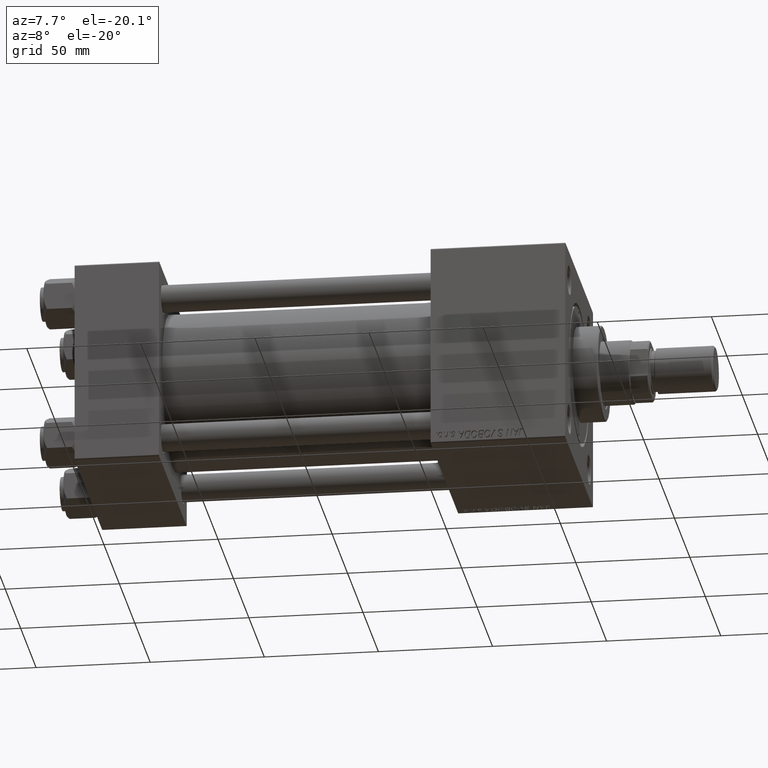
[diagram: clean part render]
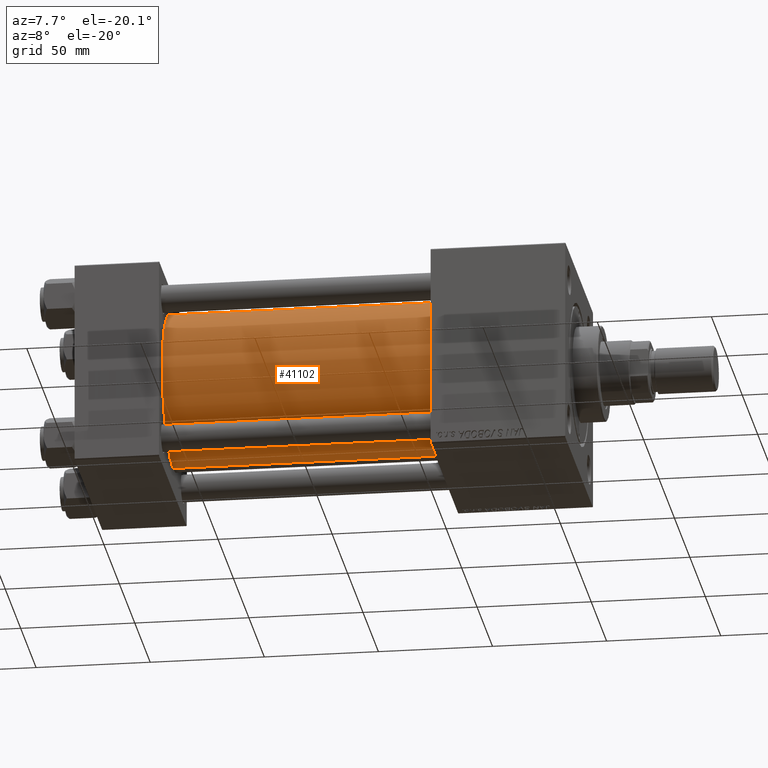
[diagram: same view with one face highlighted and labeled with its STEP entity id]
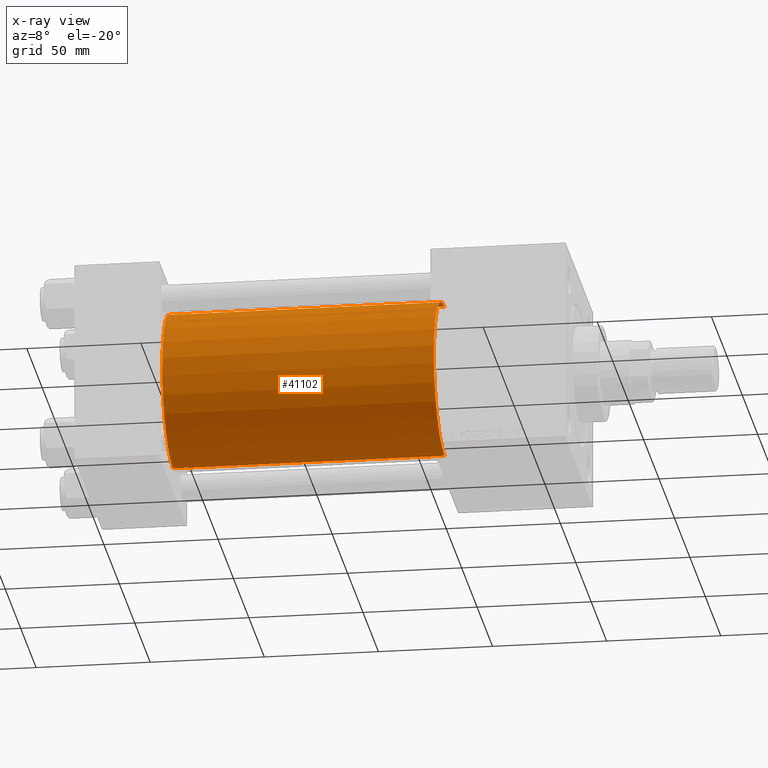
[diagram: x-ray of the same camera — body ghosted, the highlighted face saturated]
A machine part, auxiliary view. The second image highlights one B-rep face of the part: STEP entity #41102.
The next image is the same camera in x-ray: the body ghosted, the highlighted face saturated — about 0% of this face is hidden behind the body in this view.
In plain terms, the highlighted cylindrical surface (partial cylindrical patch) has radius 34.5 mm, axis along (-1, -0, -0).
Its self-contained STEP definition (entity closure, byte-faithful):
#69 = ORIENTED_EDGE ( 'NONE', *, *, #21824, .F. ) ;
#193 = DIRECTION ( 'NONE',  ( 1.000000000000000000, 0.000000000000000000, 0.000000000000000000 ) ) ;
#2492 = DIRECTION ( 'NONE',  ( 1.000000000000000000, -0.000000000000000000, 0.000000000000000000 ) ) ;
#3146 = CARTESIAN_POINT ( 'NONE',  ( 156.0000000000000000, -2.602085213965210642E-15, 0.000000000000000000 ) ) ;
#4320 = CIRCLE ( 'NONE', #44531, 34.50000000000000000 ) ;
#4826 = CARTESIAN_POINT ( 'NONE',  ( 37.00000000000000711, -2.602085213965210642E-15, 0.000000000000000000 ) ) ;
#5349 = LINE ( 'NONE', #28980, #15312 ) ;
#6786 = VERTEX_POINT ( 'NONE', #11442 ) ;
#7897 = EDGE_CURVE ( 'NONE', #27802, #31330, #27144, .T. ) ;
#10589 = VERTEX_POINT ( 'NONE', #42071 ) ;
#10615 = DIRECTION ( 'NONE',  ( 0.000000000000000000, 0.000000000000000000, 1.000000000000000000 ) ) ;
#11442 = CARTESIAN_POINT ( 'NONE',  ( 37.00000000000000711, 1.622946243093158675E-15, -34.50000000000000000 ) ) ;
#13494 = EDGE_CURVE ( 'NONE', #10589, #6786, #4320, .T. ) ;
#15075 = DIRECTION ( 'NONE',  ( 0.000000000000000000, 0.000000000000000000, 1.000000000000000000 ) ) ;
#15312 = VECTOR ( 'NONE', #24597, 1000.000000000000000 ) ;
#18578 = FACE_OUTER_BOUND ( 'NONE', #27796, .T. ) ;
#21625 = AXIS2_PLACEMENT_3D ( 'NONE', #3146, #30395, #10615 ) ;
#21824 = EDGE_CURVE ( 'NONE', #31330, #6786, #5349, .T. ) ;
#24325 = ORIENTED_EDGE ( 'NONE', *, *, #13494, .T. ) ;
#24597 = DIRECTION ( 'NONE',  ( -1.000000000000000000, -0.000000000000000000, -0.000000000000000000 ) ) ;
#25776 = ORIENTED_EDGE ( 'NONE', *, *, #7897, .F. ) ;
#27144 = CIRCLE ( 'NONE', #48457, 34.50000000000000000 ) ;
#27796 = EDGE_LOOP ( 'NONE', ( #69, #25776, #43772, #24325 ) ) ;
#27802 = VERTEX_POINT ( 'NONE', #46232 ) ;
#28900 = VECTOR ( 'NONE', #36731, 1000.000000000000000 ) ;
#28980 = CARTESIAN_POINT ( 'NONE',  ( 156.0000000000000000, 1.622946243093158675E-15, -34.50000000000000000 ) ) ;
#30395 = DIRECTION ( 'NONE',  ( -1.000000000000000000, -0.000000000000000000, -0.000000000000000000 ) ) ;
#31330 = VERTEX_POINT ( 'NONE', #49316 ) ;
#32637 = CARTESIAN_POINT ( 'NONE',  ( 156.0000000000000000, -2.602085213965210642E-15, 34.50000000000000000 ) ) ;
#35142 = CARTESIAN_POINT ( 'NONE',  ( 156.0000000000000000, -2.602085213965210642E-15, 0.000000000000000000 ) ) ;
#36731 = DIRECTION ( 'NONE',  ( -1.000000000000000000, -0.000000000000000000, -0.000000000000000000 ) ) ;
#37504 = LINE ( 'NONE', #32637, #28900 ) ;
#37843 = CYLINDRICAL_SURFACE ( 'NONE', #21625, 34.50000000000000000 ) ;
#38739 = DIRECTION ( 'NONE',  ( 0.000000000000000000, 0.000000000000000000, -1.000000000000000000 ) ) ;
#39442 = EDGE_CURVE ( 'NONE', #27802, #10589, #37504, .T. ) ;
#41102 = ADVANCED_FACE ( 'NONE', ( #18578 ), #37843, .T. ) ;
#42071 = CARTESIAN_POINT ( 'NONE',  ( 37.00000000000000711, -2.602085213965210642E-15, 34.50000000000000000 ) ) ;
#43772 = ORIENTED_EDGE ( 'NONE', *, *, #39442, .T. ) ;
#44531 = AXIS2_PLACEMENT_3D ( 'NONE', #4826, #2492, #15075 ) ;
#46232 = CARTESIAN_POINT ( 'NONE',  ( 156.0000000000000000, -2.602085213965210642E-15, 34.50000000000000000 ) ) ;
#48457 = AXIS2_PLACEMENT_3D ( 'NONE', #35142, #193, #38739 ) ;
#49316 = CARTESIAN_POINT ( 'NONE',  ( 156.0000000000000000, 1.622946243093158675E-15, -34.50000000000000000 ) ) ;